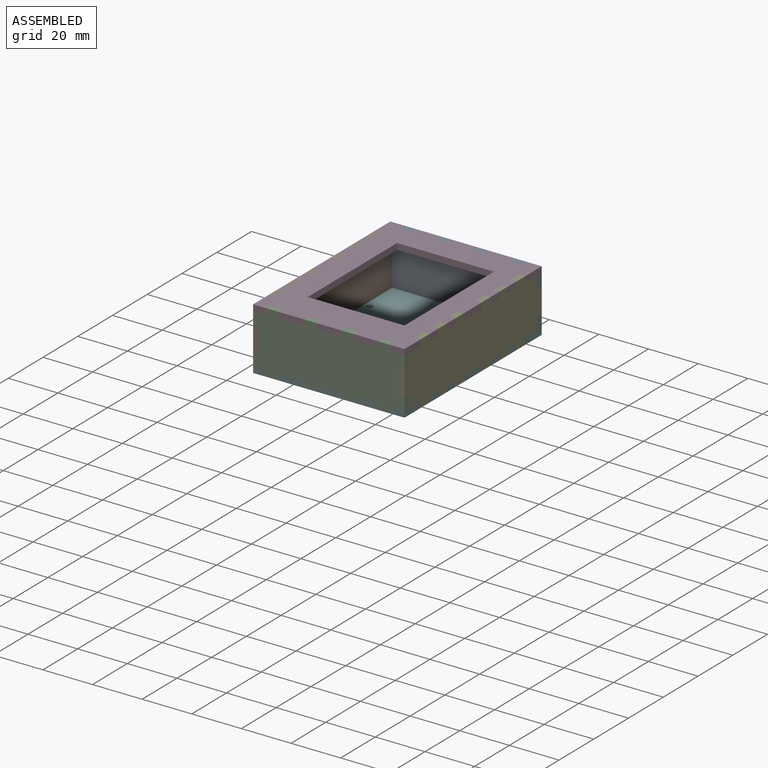
[diagram: assembled view]
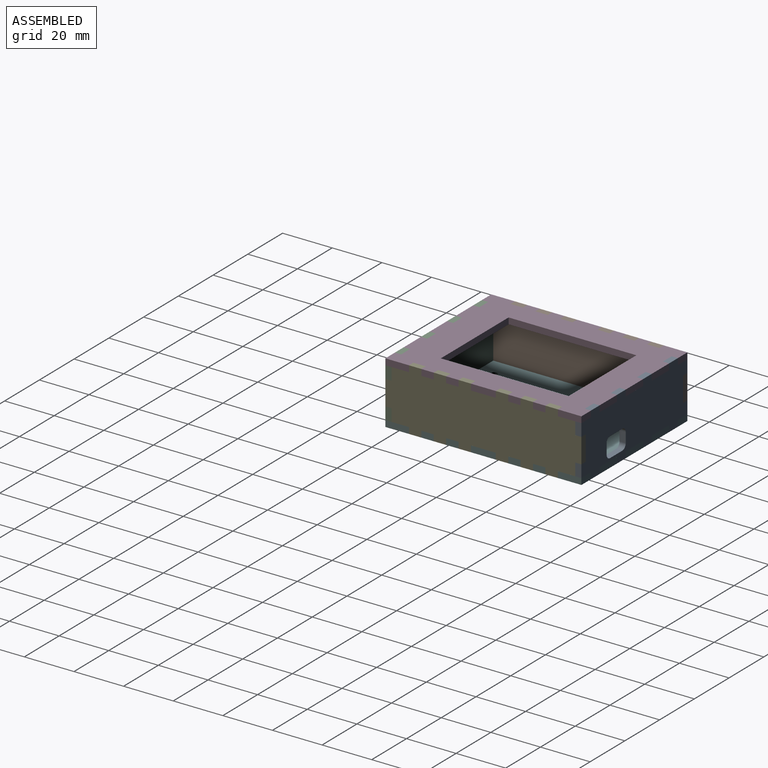
[diagram: assembled view, second angle]
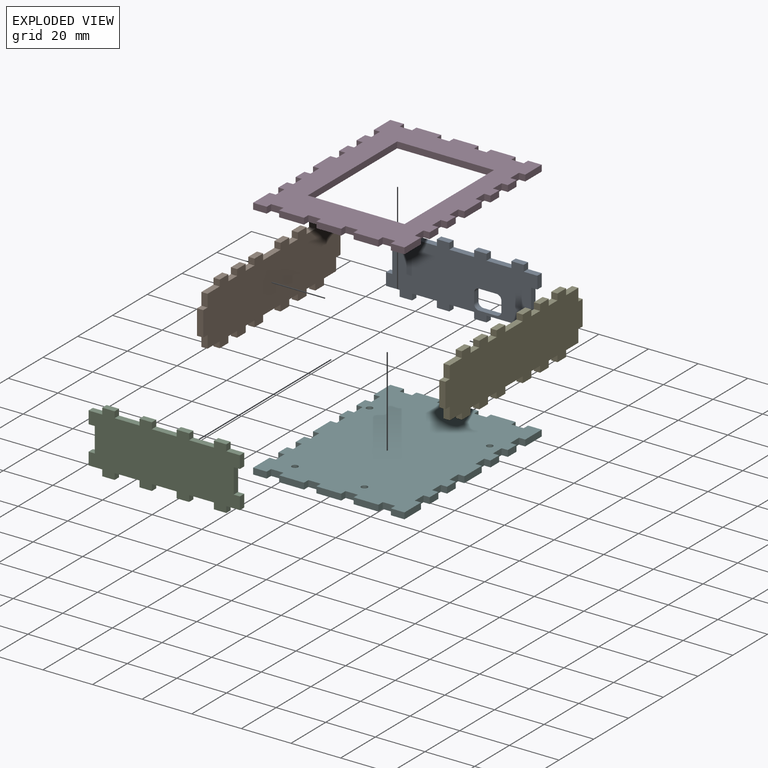
[diagram: exploded view]
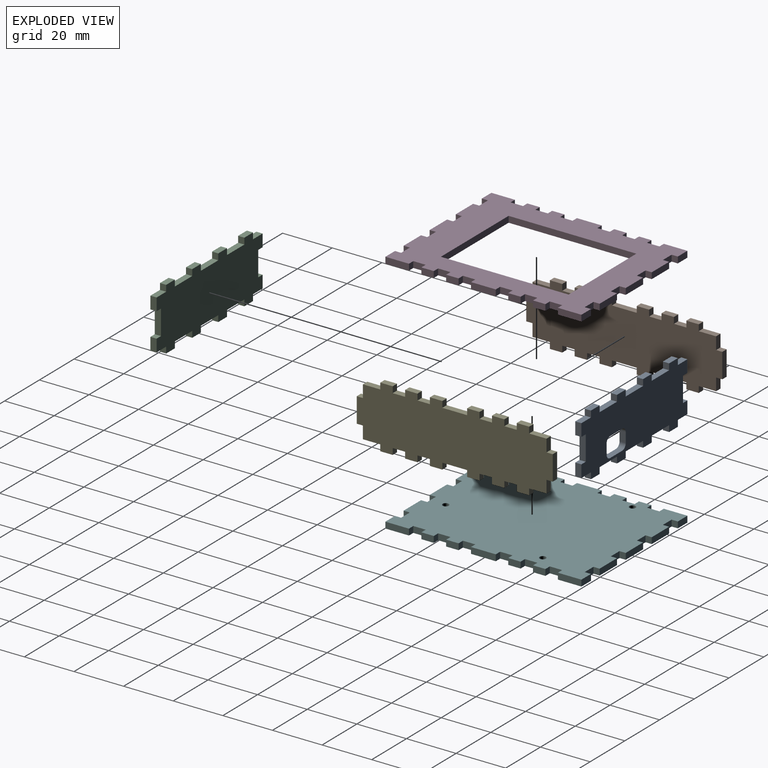
[diagram: exploded view, second angle]
ASSEMBLY  parts=6 mates=5
PART A: 54 faces, bbox 61x25x2.5 mm
  f0: plane 7x2.5mm, normal (0,1,0), area 17.5mm2, adj f48,f49,f50,f53
  f1: plane 4x2.5mm, normal (1,0,0), area 10mm2, adj f48,f49,f50,f51
  f2: plane 7x2.5mm, normal (0,-1,0), area 17.5mm2, adj f48,f49,f51,f52
  f3: plane 5.5x2.5mm, normal (0,-1,0), area 13.7mm2, adj f4,f46,f48,f49
  f4: plane 2.5x2.5mm, normal (-1,0,0), area 6.3mm2, adj f3,f5,f48,f49
  f5: plane 5x2.5mm, normal (0,-1,0), area 12.5mm2, adj f4,f6,f48,f49
  f6: plane 2.5x2.5mm, normal (1,0,0), area 6.3mm2, adj f5,f7,f48,f49
  f7: plane 10x2.5mm, normal (0,-1,0), area 25mm2, adj f6,f8,f48,f49
  f8: plane 2.5x2.5mm, normal (-1,0,0), area 6.3mm2, adj f7,f9,f48,f49
  f9: plane 5x2.5mm, normal (0,-1,0), area 12.5mm2, adj f8,f10,f48,f49
  f10: plane 2.5x2.5mm, normal (1,0,0), area 6.3mm2, adj f9,f11,f48,f49
  f11: plane 10x2.5mm, normal (0,-1,0), area 25mm2, adj f10,f12,f48,f49
  f12: plane 2.5x2.5mm, normal (-1,0,0), area 6.3mm2, adj f11,f13,f48,f49
  f13: plane 5x2.5mm, normal (0,-1,0), area 12.5mm2, adj f12,f14,f48,f49
  f14: plane 2.5x2.5mm, normal (1,0,0), area 6.3mm2, adj f13,f15,f48,f49
  f15: plane 10x2.5mm, normal (0,-1,0), area 25mm2, adj f14,f16,f48,f49
  f16: plane 2.5x2.5mm, normal (-1,0,0), area 6.3mm2, adj f15,f17,f48,f49
  f17: plane 5x2.5mm, normal (0,-1,0), area 12.5mm2, adj f16,f18,f48,f49
  f18: plane 2.5x2.5mm, normal (1,0,0), area 6.3mm2, adj f17,f19,f48,f49
  f19: plane 5.5x2.5mm, normal (0,-1,0), area 13.7mm2, adj f18,f20,f48,f49
  f20: plane 5x2.5mm, normal (1,0,0), area 12.5mm2, adj f19,f21,f48,f49
  f21: plane 2.5x2.5mm, normal (0,1,0), area 6.2mm2, adj f20,f22,f48,f49
  f22: plane 10x2.5mm, normal (1,0,0), area 25mm2, adj f21,f23,f48,f49
  f23: plane 2.5x2.5mm, normal (0,-1,0), area 6.2mm2, adj f22,f24,f48,f49
  f24: plane 5x2.5mm, normal (1,0,0), area 12.5mm2, adj f23,f25,f48,f49
  f25: plane 5.5x2.5mm, normal (0,1,0), area 13.7mm2, adj f24,f26,f48,f49
  f26: plane 2.5x2.5mm, normal (1,0,0), area 6.3mm2, adj f25,f27,f48,f49
  f27: plane 5x2.5mm, normal (0,1,0), area 12.5mm2, adj f26,f28,f48,f49
  f28: plane 2.5x2.5mm, normal (-1,0,0), area 6.3mm2, adj f27,f29,f48,f49
  f29: plane 10x2.5mm, normal (0,1,0), area 25mm2, adj f28,f30,f48,f49
  f30: plane 2.5x2.5mm, normal (1,0,0), area 6.3mm2, adj f29,f31,f48,f49
  f31: plane 5x2.5mm, normal (0,1,0), area 12.5mm2, adj f30,f32,f48,f49
  f32: plane 2.5x2.5mm, normal (-1,0,0), area 6.3mm2, adj f31,f33,f48,f49
  f33: plane 10x2.5mm, normal (0,1,0), area 25mm2, adj f32,f34,f48,f49
  f34: plane 2.5x2.5mm, normal (1,0,0), area 6.3mm2, adj f33,f35,f48,f49
  f35: plane 5x2.5mm, normal (0,1,0), area 12.5mm2, adj f34,f36,f48,f49
  f36: plane 2.5x2.5mm, normal (-1,0,0), area 6.3mm2, adj f35,f37,f48,f49
  f37: plane 10x2.5mm, normal (0,1,0), area 25mm2, adj f36,f38,f48,f49
  f38: plane 2.5x2.5mm, normal (1,0,0), area 6.3mm2, adj f37,f39,f48,f49
  f39: plane 5x2.5mm, normal (0,1,0), area 12.5mm2, adj f38,f40,f48,f49
  f40: plane 2.5x2.5mm, normal (-1,0,0), area 6.3mm2, adj f39,f41,f48,f49
  f41: plane 5.5x2.5mm, normal (0,1,0), area 13.7mm2, adj f40,f42,f48,f49
  f42: plane 5x2.5mm, normal (-1,0,0), area 12.5mm2, adj f41,f43,f48,f49
  f43: plane 2.5x2.5mm, normal (0,-1,0), area 6.2mm2, adj f42,f44,f48,f49
  f44: plane 10x2.5mm, normal (-1,0,0), area 25mm2, adj f43,f45,f48,f49
  f45: plane 2.5x2.5mm, normal (0,1,0), area 6.2mm2, adj f44,f46,f48,f49
  f46: plane 5x2.5mm, normal (-1,0,0), area 12.5mm2, adj f3,f45,f48,f49
  f47: plane 4x2.5mm, normal (-1,0,0), area 10mm2, adj f48,f49,f52,f53
  f48: plane 61x25mm, normal (0,0,1), area 1185.4mm2, adj f0,f1,f2,f3,f4,f5,f6,f7
  f49: plane 61x25mm, normal (0,0,-1), area 1185.4mm2, adj f0,f1,f2,f3,f4,f5,f6,f7
  f50: cylinder r=2mm len=2.5mm, axis (0,0,-1), area 7.9mm2, adj f0,f1,f48,f49
  f51: cylinder r=2mm len=2.5mm, axis (0,0,1), area 7.9mm2, adj f1,f2,f48,f49
  f52: cylinder r=2mm len=2.5mm, axis (0,0,-1), area 7.9mm2, adj f2,f47,f48,f49
  f53: cylinder r=2mm len=2.5mm, axis (0,0,1), area 7.9mm2, adj f0,f47,f48,f49
PART B: 62 faces, bbox 25x79x2.5 mm
  f0: plane 5x2.5mm, normal (0,-1,0), area 12.5mm2, adj f1,f59,f60,f61
  f1: plane 2.5x2.5mm, normal (-1,0,0), area 6.3mm2, adj f0,f2,f60,f61
  f2: plane 10x2.5mm, normal (0,-1,0), area 25mm2, adj f1,f3,f60,f61
  f3: plane 2.5x2.5mm, normal (1,0,0), area 6.3mm2, adj f2,f4,f60,f61
  f4: plane 5x2.5mm, normal (0,-1,0), area 12.5mm2, adj f3,f5,f60,f61
  f5: plane 7x2.5mm, normal (1,0,0), area 17.5mm2, adj f4,f6,f60,f61
  f6: plane 2.5x2.5mm, normal (0,-1,0), area 6.3mm2, adj f5,f7,f60,f61
  f7: plane 5x2.5mm, normal (1,0,0), area 12.5mm2, adj f6,f8,f60,f61
  f8: plane 2.5x2.5mm, normal (0,1,0), area 6.3mm2, adj f7,f9,f60,f61
  f9: plane 5x2.5mm, normal (1,0,0), area 12.5mm2, adj f8,f10,f60,f61
  f10: plane 2.5x2.5mm, normal (0,-1,0), area 6.3mm2, adj f9,f11,f60,f61
  f11: plane 5x2.5mm, normal (1,0,0), area 12.5mm2, adj f10,f12,f60,f61
  f12: plane 2.5x2.5mm, normal (0,1,0), area 6.3mm2, adj f11,f13,f60,f61
  f13: plane 5x2.5mm, normal (1,0,0), area 12.5mm2, adj f12,f14,f60,f61
  f14: plane 2.5x2.5mm, normal (0,-1,0), area 6.3mm2, adj f13,f15,f60,f61
  f15: plane 5x2.5mm, normal (1,0,0), area 12.5mm2, adj f14,f16,f60,f61
  f16: plane 2.5x2.5mm, normal (0,1,0), area 6.3mm2, adj f15,f17,f60,f61
  f17: plane 10x2.5mm, normal (1,0,0), area 25mm2, adj f16,f18,f60,f61
  f18: plane 2.5x2.5mm, normal (0,-1,0), area 6.3mm2, adj f17,f19,f60,f61
  f19: plane 5x2.5mm, normal (1,0,0), area 12.5mm2, adj f18,f20,f60,f61
  f20: plane 2.5x2.5mm, normal (0,1,0), area 6.3mm2, adj f19,f21,f60,f61
  f21: plane 5x2.5mm, normal (1,0,0), area 12.5mm2, adj f20,f22,f60,f61
  f22: plane 2.5x2.5mm, normal (0,-1,0), area 6.3mm2, adj f21,f23,f60,f61
  f23: plane 5x2.5mm, normal (1,0,0), area 12.5mm2, adj f22,f24,f60,f61
  f24: plane 2.5x2.5mm, normal (0,1,0), area 6.3mm2, adj f23,f25,f60,f61
  f25: plane 5x2.5mm, normal (1,0,0), area 12.5mm2, adj f24,f26,f60,f61
  f26: plane 2.5x2.5mm, normal (0,-1,0), area 6.3mm2, adj f25,f27,f60,f61
  f27: plane 5x2.5mm, normal (1,0,0), area 12.5mm2, adj f26,f28,f60,f61
  f28: plane 2.5x2.5mm, normal (0,1,0), area 6.3mm2, adj f27,f29,f60,f61
  f29: plane 7x2.5mm, normal (1,0,0), area 17.5mm2, adj f28,f30,f60,f61
  f30: plane 5x2.5mm, normal (0,1,0), area 12.5mm2, adj f29,f31,f60,f61
  f31: plane 2.5x2.5mm, normal (1,0,0), area 6.3mm2, adj f30,f32,f60,f61
  f32: plane 10x2.5mm, normal (0,1,0), area 25mm2, adj f31,f33,f60,f61
  f33: plane 2.5x2.5mm, normal (-1,0,0), area 6.3mm2, adj f32,f34,f60,f61
  f34: plane 5x2.5mm, normal (0,1,0), area 12.5mm2, adj f33,f35,f60,f61
  f35: plane 7x2.5mm, normal (-1,0,0), area 17.5mm2, adj f34,f36,f60,f61
  f36: plane 2.5x2.5mm, normal (0,1,0), area 6.3mm2, adj f35,f37,f60,f61
  f37: plane 5x2.5mm, normal (-1,0,0), area 12.5mm2, adj f36,f38,f60,f61
  f38: plane 2.5x2.5mm, normal (0,-1,0), area 6.3mm2, adj f37,f39,f60,f61
  f39: plane 5x2.5mm, normal (-1,0,0), area 12.5mm2, adj f38,f40,f60,f61
  f40: plane 2.5x2.5mm, normal (0,1,0), area 6.3mm2, adj f39,f41,f60,f61
  f41: plane 5x2.5mm, normal (-1,0,0), area 12.5mm2, adj f40,f42,f60,f61
  f42: plane 2.5x2.5mm, normal (0,-1,0), area 6.3mm2, adj f41,f43,f60,f61
  f43: plane 5x2.5mm, normal (-1,0,0), area 12.5mm2, adj f42,f44,f60,f61
  f44: plane 2.5x2.5mm, normal (0,1,0), area 6.3mm2, adj f43,f45,f60,f61
  f45: plane 5x2.5mm, normal (-1,0,0), area 12.5mm2, adj f44,f46,f60,f61
  f46: plane 2.5x2.5mm, normal (0,-1,0), area 6.3mm2, adj f45,f47,f60,f61
  f47: plane 10x2.5mm, normal (-1,0,0), area 25mm2, adj f46,f48,f60,f61
  f48: plane 2.5x2.5mm, normal (0,1,0), area 6.3mm2, adj f47,f49,f60,f61
  f49: plane 5x2.5mm, normal (-1,0,0), area 12.5mm2, adj f48,f50,f60,f61
  f50: plane 2.5x2.5mm, normal (0,-1,0), area 6.3mm2, adj f49,f51,f60,f61
  f51: plane 5x2.5mm, normal (-1,0,0), area 12.5mm2, adj f50,f52,f60,f61
  f52: plane 2.5x2.5mm, normal (0,1,0), area 6.3mm2, adj f51,f53,f60,f61
  f53: plane 5x2.5mm, normal (-1,0,0), area 12.5mm2, adj f52,f54,f60,f61
  f54: plane 2.5x2.5mm, normal (0,-1,0), area 6.3mm2, adj f53,f55,f60,f61
  f55: plane 5x2.5mm, normal (-1,0,0), area 12.5mm2, adj f54,f56,f60,f61
  f56: plane 2.5x2.5mm, normal (0,1,0), area 6.3mm2, adj f55,f57,f60,f61
  f57: plane 5x2.5mm, normal (-1,0,0), area 12.5mm2, adj f56,f58,f60,f61
  f58: plane 2.5x2.5mm, normal (0,-1,0), area 6.3mm2, adj f57,f59,f60,f61
  f59: plane 7x2.5mm, normal (-1,0,0), area 17.5mm2, adj f0,f58,f60,f61
  f60: plane 79x25mm, normal (0,0,1), area 1680mm2, adj f0,f1,f2,f3,f4,f5,f6,f7
  f61: plane 79x25mm, normal (0,0,-1), area 1680mm2, adj f0,f1,f2,f3,f4,f5,f6,f7
PART C: 46 faces, bbox 61x25x2.5 mm
  f0: plane 5.5x2.5mm, normal (0,-1,0), area 13.7mm2, adj f1,f43,f44,f45
  f1: plane 2.5x2.5mm, normal (-1,0,0), area 6.3mm2, adj f0,f2,f44,f45
  f2: plane 5x2.5mm, normal (0,-1,0), area 12.5mm2, adj f1,f3,f44,f45
  f3: plane 2.5x2.5mm, normal (1,0,0), area 6.3mm2, adj f2,f4,f44,f45
  f4: plane 10x2.5mm, normal (0,-1,0), area 25mm2, adj f3,f5,f44,f45
  f5: plane 2.5x2.5mm, normal (-1,0,0), area 6.3mm2, adj f4,f6,f44,f45
  f6: plane 5x2.5mm, normal (0,-1,0), area 12.5mm2, adj f5,f7,f44,f45
  f7: plane 2.5x2.5mm, normal (1,0,0), area 6.3mm2, adj f6,f8,f44,f45
  f8: plane 10x2.5mm, normal (0,-1,0), area 25mm2, adj f7,f9,f44,f45
  f9: plane 2.5x2.5mm, normal (-1,0,0), area 6.3mm2, adj f8,f10,f44,f45
  f10: plane 5x2.5mm, normal (0,-1,0), area 12.5mm2, adj f9,f11,f44,f45
  f11: plane 2.5x2.5mm, normal (1,0,0), area 6.3mm2, adj f10,f12,f44,f45
  f12: plane 10x2.5mm, normal (0,-1,0), area 25mm2, adj f11,f13,f44,f45
  f13: plane 2.5x2.5mm, normal (-1,0,0), area 6.3mm2, adj f12,f14,f44,f45
  f14: plane 5x2.5mm, normal (0,-1,0), area 12.5mm2, adj f13,f15,f44,f45
  f15: plane 2.5x2.5mm, normal (1,0,0), area 6.3mm2, adj f14,f16,f44,f45
  f16: plane 5.5x2.5mm, normal (0,-1,0), area 13.7mm2, adj f15,f17,f44,f45
  f17: plane 5x2.5mm, normal (1,0,0), area 12.5mm2, adj f16,f18,f44,f45
  f18: plane 2.5x2.5mm, normal (0,1,0), area 6.2mm2, adj f17,f19,f44,f45
  f19: plane 10x2.5mm, normal (1,0,0), area 25mm2, adj f18,f20,f44,f45
  f20: plane 2.5x2.5mm, normal (0,-1,0), area 6.2mm2, adj f19,f21,f44,f45
  f21: plane 5x2.5mm, normal (1,0,0), area 12.5mm2, adj f20,f22,f44,f45
  f22: plane 5.5x2.5mm, normal (0,1,0), area 13.7mm2, adj f21,f23,f44,f45
  f23: plane 2.5x2.5mm, normal (1,0,0), area 6.3mm2, adj f22,f24,f44,f45
  f24: plane 5x2.5mm, normal (0,1,0), area 12.5mm2, adj f23,f25,f44,f45
  f25: plane 2.5x2.5mm, normal (-1,0,0), area 6.3mm2, adj f24,f26,f44,f45
  f26: plane 10x2.5mm, normal (0,1,0), area 25mm2, adj f25,f27,f44,f45
  f27: plane 2.5x2.5mm, normal (1,0,0), area 6.3mm2, adj f26,f28,f44,f45
  f28: plane 5x2.5mm, normal (0,1,0), area 12.5mm2, adj f27,f29,f44,f45
  f29: plane 2.5x2.5mm, normal (-1,0,0), area 6.3mm2, adj f28,f30,f44,f45
  f30: plane 10x2.5mm, normal (0,1,0), area 25mm2, adj f29,f31,f44,f45
  f31: plane 2.5x2.5mm, normal (1,0,0), area 6.3mm2, adj f30,f32,f44,f45
  f32: plane 5x2.5mm, normal (0,1,0), area 12.5mm2, adj f31,f33,f44,f45
  f33: plane 2.5x2.5mm, normal (-1,0,0), area 6.3mm2, adj f32,f34,f44,f45
  f34: plane 10x2.5mm, normal (0,1,0), area 25mm2, adj f33,f35,f44,f45
  f35: plane 2.5x2.5mm, normal (1,0,0), area 6.3mm2, adj f34,f36,f44,f45
  f36: plane 5x2.5mm, normal (0,1,0), area 12.5mm2, adj f35,f37,f44,f45
  f37: plane 2.5x2.5mm, normal (-1,0,0), area 6.3mm2, adj f36,f38,f44,f45
  f38: plane 5.5x2.5mm, normal (0,1,0), area 13.7mm2, adj f37,f39,f44,f45
  f39: plane 5x2.5mm, normal (-1,0,0), area 12.5mm2, adj f38,f40,f44,f45
  f40: plane 2.5x2.5mm, normal (0,-1,0), area 6.2mm2, adj f39,f41,f44,f45
  f41: plane 10x2.5mm, normal (-1,0,0), area 25mm2, adj f40,f42,f44,f45
  f42: plane 2.5x2.5mm, normal (0,1,0), area 6.2mm2, adj f41,f43,f44,f45
  f43: plane 5x2.5mm, normal (-1,0,0), area 12.5mm2, adj f0,f42,f44,f45
  f44: plane 61x25mm, normal (0,0,1), area 1270mm2, adj f0,f1,f2,f3,f4,f5,f6,f7
  f45: plane 61x25mm, normal (0,0,-1), area 1270mm2, adj f0,f1,f2,f3,f4,f5,f6,f7
PART D: 90 faces, bbox 61x79x2.5 mm
  f0: plane 39x2.5mm, normal (0,1,0), area 97.5mm2, adj f1,f87,f88,f89
  f1: plane 51.5x2.5mm, normal (1,0,0), area 128.8mm2, adj f0,f2,f88,f89
  f2: plane 39x2.5mm, normal (0,-1,0), area 97.5mm2, adj f1,f87,f88,f89
  f3: plane 5x2.5mm, normal (0,-1,0), area 12.5mm2, adj f4,f86,f88,f89
  f4: plane 2.5x2.5mm, normal (-1,0,0), area 6.3mm2, adj f3,f5,f88,f89
  f5: plane 5.5x2.5mm, normal (0,-1,0), area 13.7mm2, adj f4,f6,f88,f89
  f6: plane 9.5x2.5mm, normal (1,0,0), area 23.8mm2, adj f5,f7,f88,f89
  f7: plane 2.5x2.5mm, normal (0,1,0), area 6.2mm2, adj f6,f8,f88,f89
  f8: plane 5x2.5mm, normal (1,0,0), area 12.5mm2, adj f7,f9,f88,f89
  f9: plane 2.5x2.5mm, normal (0,-1,0), area 6.2mm2, adj f8,f10,f88,f89
  f10: plane 5x2.5mm, normal (1,0,0), area 12.5mm2, adj f9,f11,f88,f89
  f11: plane 2.5x2.5mm, normal (0,1,0), area 6.2mm2, adj f10,f12,f88,f89
  f12: plane 5x2.5mm, normal (1,0,0), area 12.5mm2, adj f11,f13,f88,f89
  f13: plane 2.5x2.5mm, normal (0,-1,0), area 6.2mm2, adj f12,f14,f88,f89
  f14: plane 5x2.5mm, normal (1,0,0), area 12.5mm2, adj f13,f15,f88,f89
  f15: plane 2.5x2.5mm, normal (0,1,0), area 6.2mm2, adj f14,f16,f88,f89
  f16: plane 5x2.5mm, normal (1,0,0), area 12.5mm2, adj f15,f17,f88,f89
  f17: plane 2.5x2.5mm, normal (0,-1,0), area 6.2mm2, adj f16,f18,f88,f89
  f18: plane 10x2.5mm, normal (1,0,0), area 25mm2, adj f17,f19,f88,f89
  f19: plane 2.5x2.5mm, normal (0,1,0), area 6.2mm2, adj f18,f20,f88,f89
  f20: plane 5x2.5mm, normal (1,0,0), area 12.5mm2, adj f19,f21,f88,f89
  f21: plane 2.5x2.5mm, normal (0,-1,0), area 6.2mm2, adj f20,f22,f88,f89
  f22: plane 5x2.5mm, normal (1,0,0), area 12.5mm2, adj f21,f23,f88,f89
  f23: plane 2.5x2.5mm, normal (0,1,0), area 6.2mm2, adj f22,f24,f88,f89
  f24: plane 5x2.5mm, normal (1,0,0), area 12.5mm2, adj f23,f25,f88,f89
  f25: plane 2.5x2.5mm, normal (0,-1,0), area 6.2mm2, adj f24,f26,f88,f89
  f26: plane 5x2.5mm, normal (1,0,0), area 12.5mm2, adj f25,f27,f88,f89
  f27: plane 2.5x2.5mm, normal (0,1,0), area 6.2mm2, adj f26,f28,f88,f89
  f28: plane 5x2.5mm, normal (1,0,0), area 12.5mm2, adj f27,f29,f88,f89
  f29: plane 2.5x2.5mm, normal (0,-1,0), area 6.2mm2, adj f28,f30,f88,f89
  f30: plane 9.5x2.5mm, normal (1,0,0), area 23.8mm2, adj f29,f31,f88,f89
  f31: plane 5.5x2.5mm, normal (0,1,0), area 13.7mm2, adj f30,f32,f88,f89
  f32: plane 2.5x2.5mm, normal (-1,0,0), area 6.3mm2, adj f31,f33,f88,f89
  f33: plane 5x2.5mm, normal (0,1,0), area 12.5mm2, adj f32,f34,f88,f89
  f34: plane 2.5x2.5mm, normal (1,0,0), area 6.3mm2, adj f33,f35,f88,f89
  f35: plane 10x2.5mm, normal (0,1,0), area 25mm2, adj f34,f36,f88,f89
  f36: plane 2.5x2.5mm, normal (-1,0,0), area 6.3mm2, adj f35,f37,f88,f89
  f37: plane 5x2.5mm, normal (0,1,0), area 12.5mm2, adj f36,f38,f88,f89
  f38: plane 2.5x2.5mm, normal (1,0,0), area 6.3mm2, adj f37,f39,f88,f89
  f39: plane 10x2.5mm, normal (0,1,0), area 25mm2, adj f38,f40,f88,f89
  f40: plane 2.5x2.5mm, normal (-1,0,0), area 6.3mm2, adj f39,f41,f88,f89
  f41: plane 5x2.5mm, normal (0,1,0), area 12.5mm2, adj f40,f42,f88,f89
  f42: plane 2.5x2.5mm, normal (1,0,0), area 6.3mm2, adj f41,f43,f88,f89
  f43: plane 10x2.5mm, normal (0,1,0), area 25mm2, adj f42,f44,f88,f89
  f44: plane 2.5x2.5mm, normal (-1,0,0), area 6.3mm2, adj f43,f45,f88,f89
  f45: plane 5x2.5mm, normal (0,1,0), area 12.5mm2, adj f44,f46,f88,f89
  f46: plane 2.5x2.5mm, normal (1,0,0), area 6.3mm2, adj f45,f47,f88,f89
  f47: plane 5.5x2.5mm, normal (0,1,0), area 13.7mm2, adj f46,f48,f88,f89
  f48: plane 9.5x2.5mm, normal (-1,0,0), area 23.8mm2, adj f47,f49,f88,f89
  f49: plane 2.5x2.5mm, normal (0,-1,0), area 6.2mm2, adj f48,f50,f88,f89
  f50: plane 5x2.5mm, normal (-1,0,0), area 12.5mm2, adj f49,f51,f88,f89
  f51: plane 2.5x2.5mm, normal (0,1,0), area 6.2mm2, adj f50,f52,f88,f89
  f52: plane 5x2.5mm, normal (-1,0,0), area 12.5mm2, adj f51,f53,f88,f89
  f53: plane 2.5x2.5mm, normal (0,-1,0), area 6.2mm2, adj f52,f54,f88,f89
  f54: plane 5x2.5mm, normal (-1,0,0), area 12.5mm2, adj f53,f55,f88,f89
  f55: plane 2.5x2.5mm, normal (0,1,0), area 6.2mm2, adj f54,f56,f88,f89
  f56: plane 5x2.5mm, normal (-1,0,0), area 12.5mm2, adj f55,f57,f88,f89
  f57: plane 2.5x2.5mm, normal (0,-1,0), area 6.2mm2, adj f56,f58,f88,f89
  f58: plane 5x2.5mm, normal (-1,0,0), area 12.5mm2, adj f57,f59,f88,f89
  f59: plane 2.5x2.5mm, normal (0,1,0), area 6.2mm2, adj f58,f60,f88,f89
  f60: plane 10x2.5mm, normal (-1,0,0), area 25mm2, adj f59,f61,f88,f89
  f61: plane 2.5x2.5mm, normal (0,-1,0), area 6.2mm2, adj f60,f62,f88,f89
  f62: plane 5x2.5mm, normal (-1,0,0), area 12.5mm2, adj f61,f63,f88,f89
  f63: plane 2.5x2.5mm, normal (0,1,0), area 6.2mm2, adj f62,f64,f88,f89
  f64: plane 5x2.5mm, normal (-1,0,0), area 12.5mm2, adj f63,f65,f88,f89
  f65: plane 2.5x2.5mm, normal (0,-1,0), area 6.2mm2, adj f64,f66,f88,f89
  f66: plane 5x2.5mm, normal (-1,0,0), area 12.5mm2, adj f65,f67,f88,f89
  f67: plane 2.5x2.5mm, normal (0,1,0), area 6.2mm2, adj f66,f68,f88,f89
  f68: plane 5x2.5mm, normal (-1,0,0), area 12.5mm2, adj f67,f69,f88,f89
  f69: plane 2.5x2.5mm, normal (0,-1,0), area 6.2mm2, adj f68,f70,f88,f89
  f70: plane 5x2.5mm, normal (-1,0,0), area 12.5mm2, adj f69,f71,f88,f89
  f71: plane 2.5x2.5mm, normal (0,1,0), area 6.2mm2, adj f70,f72,f88,f89
  f72: plane 9.5x2.5mm, normal (-1,0,0), area 23.8mm2, adj f71,f73,f88,f89
  f73: plane 5.5x2.5mm, normal (0,-1,0), area 13.7mm2, adj f72,f74,f88,f89
  f74: plane 2.5x2.5mm, normal (1,0,0), area 6.3mm2, adj f73,f75,f88,f89
  f75: plane 5x2.5mm, normal (0,-1,0), area 12.5mm2, adj f74,f76,f88,f89
  f76: plane 2.5x2.5mm, normal (-1,0,0), area 6.3mm2, adj f75,f77,f88,f89
  f77: plane 10x2.5mm, normal (0,-1,0), area 25mm2, adj f76,f78,f88,f89
  f78: plane 2.5x2.5mm, normal (1,0,0), area 6.3mm2, adj f77,f79,f88,f89
  f79: plane 5x2.5mm, normal (0,-1,0), area 12.5mm2, adj f78,f80,f88,f89
  f80: plane 2.5x2.5mm, normal (-1,0,0), area 6.3mm2, adj f79,f81,f88,f89
  f81: plane 10x2.5mm, normal (0,-1,0), area 25mm2, adj f80,f82,f88,f89
  f82: plane 2.5x2.5mm, normal (1,0,0), area 6.3mm2, adj f81,f83,f88,f89
  f83: plane 5x2.5mm, normal (0,-1,0), area 12.5mm2, adj f82,f84,f88,f89
  f84: plane 2.5x2.5mm, normal (-1,0,0), area 6.3mm2, adj f83,f85,f88,f89
  f85: plane 10x2.5mm, normal (0,-1,0), area 25mm2, adj f84,f86,f88,f89
  f86: plane 2.5x2.5mm, normal (1,0,0), area 6.3mm2, adj f3,f85,f88,f89
  f87: plane 51.5x2.5mm, normal (-1,0,0), area 128.8mm2, adj f0,f2,f88,f89
  f88: plane 79x61mm, normal (0,0,1), area 2560.5mm2, adj f0,f1,f2,f3,f4,f5,f6,f7
  f89: plane 79x61mm, normal (0,0,-1), area 2560.5mm2, adj f0,f1,f2,f3,f4,f5,f6,f7
PART E: same geometry as B
PART F: 90 faces, bbox 61x79x2.5 mm
  f0: plane 5x2.5mm, normal (0,-1,0), area 12.5mm2, adj f1,f86,f88,f89
  f1: plane 2.5x2.5mm, normal (-1,0,0), area 6.3mm2, adj f0,f2,f88,f89
  f2: plane 5.5x2.5mm, normal (0,-1,0), area 13.7mm2, adj f1,f3,f88,f89
  f3: plane 9.5x2.5mm, normal (1,0,0), area 23.8mm2, adj f2,f4,f88,f89
  f4: plane 2.5x2.5mm, normal (0,1,0), area 6.2mm2, adj f3,f5,f88,f89
  f5: plane 5x2.5mm, normal (1,0,0), area 12.5mm2, adj f4,f6,f88,f89
  f6: plane 2.5x2.5mm, normal (0,-1,0), area 6.2mm2, adj f5,f7,f88,f89
  f7: plane 5x2.5mm, normal (1,0,0), area 12.5mm2, adj f6,f8,f88,f89
  f8: plane 2.5x2.5mm, normal (0,1,0), area 6.2mm2, adj f7,f9,f88,f89
  f9: plane 5x2.5mm, normal (1,0,0), area 12.5mm2, adj f8,f10,f88,f89
  f10: plane 2.5x2.5mm, normal (0,-1,0), area 6.2mm2, adj f9,f11,f88,f89
  f11: plane 5x2.5mm, normal (1,0,0), area 12.5mm2, adj f10,f12,f88,f89
  f12: plane 2.5x2.5mm, normal (0,1,0), area 6.2mm2, adj f11,f13,f88,f89
  f13: plane 5x2.5mm, normal (1,0,0), area 12.5mm2, adj f12,f14,f88,f89
  f14: plane 2.5x2.5mm, normal (0,-1,0), area 6.2mm2, adj f13,f15,f88,f89
  f15: plane 10x2.5mm, normal (1,0,0), area 25mm2, adj f14,f16,f88,f89
  f16: plane 2.5x2.5mm, normal (0,1,0), area 6.2mm2, adj f15,f17,f88,f89
  f17: plane 5x2.5mm, normal (1,0,0), area 12.5mm2, adj f16,f18,f88,f89
  f18: plane 2.5x2.5mm, normal (0,-1,0), area 6.2mm2, adj f17,f19,f88,f89
  f19: plane 5x2.5mm, normal (1,0,0), area 12.5mm2, adj f18,f20,f88,f89
  f20: plane 2.5x2.5mm, normal (0,1,0), area 6.2mm2, adj f19,f21,f88,f89
  f21: plane 5x2.5mm, normal (1,0,0), area 12.5mm2, adj f20,f22,f88,f89
  f22: plane 2.5x2.5mm, normal (0,-1,0), area 6.2mm2, adj f21,f23,f88,f89
  f23: plane 5x2.5mm, normal (1,0,0), area 12.5mm2, adj f22,f24,f88,f89
  f24: plane 2.5x2.5mm, normal (0,1,0), area 6.2mm2, adj f23,f25,f88,f89
  f25: plane 5x2.5mm, normal (1,0,0), area 12.5mm2, adj f24,f26,f88,f89
  f26: plane 2.5x2.5mm, normal (0,-1,0), area 6.2mm2, adj f25,f27,f88,f89
  f27: plane 9.5x2.5mm, normal (1,0,0), area 23.8mm2, adj f26,f28,f88,f89
  f28: plane 5.5x2.5mm, normal (0,1,0), area 13.7mm2, adj f27,f29,f88,f89
  f29: plane 2.5x2.5mm, normal (-1,0,0), area 6.3mm2, adj f28,f30,f88,f89
  f30: plane 5x2.5mm, normal (0,1,0), area 12.5mm2, adj f29,f31,f88,f89
  f31: plane 2.5x2.5mm, normal (1,0,0), area 6.3mm2, adj f30,f32,f88,f89
  f32: plane 10x2.5mm, normal (0,1,0), area 25mm2, adj f31,f33,f88,f89
  f33: plane 2.5x2.5mm, normal (-1,0,0), area 6.3mm2, adj f32,f34,f88,f89
  f34: plane 5x2.5mm, normal (0,1,0), area 12.5mm2, adj f33,f35,f88,f89
  f35: plane 2.5x2.5mm, normal (1,0,0), area 6.3mm2, adj f34,f36,f88,f89
  f36: plane 10x2.5mm, normal (0,1,0), area 25mm2, adj f35,f37,f88,f89
  f37: plane 2.5x2.5mm, normal (-1,0,0), area 6.3mm2, adj f36,f38,f88,f89
  f38: plane 5x2.5mm, normal (0,1,0), area 12.5mm2, adj f37,f39,f88,f89
  f39: plane 2.5x2.5mm, normal (1,0,0), area 6.3mm2, adj f38,f40,f88,f89
  f40: plane 10x2.5mm, normal (0,1,0), area 25mm2, adj f39,f41,f88,f89
  f41: plane 2.5x2.5mm, normal (-1,0,0), area 6.3mm2, adj f40,f42,f88,f89
  f42: plane 5x2.5mm, normal (0,1,0), area 12.5mm2, adj f41,f43,f88,f89
  f43: plane 2.5x2.5mm, normal (1,0,0), area 6.3mm2, adj f42,f44,f88,f89
  f44: plane 5.5x2.5mm, normal (0,1,0), area 13.7mm2, adj f43,f45,f88,f89
  f45: plane 9.5x2.5mm, normal (-1,0,0), area 23.8mm2, adj f44,f46,f88,f89
  f46: plane 2.5x2.5mm, normal (0,-1,0), area 6.2mm2, adj f45,f47,f88,f89
  f47: plane 5x2.5mm, normal (-1,0,0), area 12.5mm2, adj f46,f48,f88,f89
  f48: plane 2.5x2.5mm, normal (0,1,0), area 6.2mm2, adj f47,f49,f88,f89
  f49: plane 5x2.5mm, normal (-1,0,0), area 12.5mm2, adj f48,f50,f88,f89
  f50: plane 2.5x2.5mm, normal (0,-1,0), area 6.2mm2, adj f49,f51,f88,f89
  f51: plane 5x2.5mm, normal (-1,0,0), area 12.5mm2, adj f50,f52,f88,f89
  f52: plane 2.5x2.5mm, normal (0,1,0), area 6.2mm2, adj f51,f53,f88,f89
  f53: plane 5x2.5mm, normal (-1,0,0), area 12.5mm2, adj f52,f54,f88,f89
  f54: plane 2.5x2.5mm, normal (0,-1,0), area 6.2mm2, adj f53,f55,f88,f89
  f55: plane 5x2.5mm, normal (-1,0,0), area 12.5mm2, adj f54,f56,f88,f89
  f56: plane 2.5x2.5mm, normal (0,1,0), area 6.2mm2, adj f55,f57,f88,f89
  f57: plane 10x2.5mm, normal (-1,0,0), area 25mm2, adj f56,f58,f88,f89
  f58: plane 2.5x2.5mm, normal (0,-1,0), area 6.2mm2, adj f57,f59,f88,f89
  f59: plane 5x2.5mm, normal (-1,0,0), area 12.5mm2, adj f58,f60,f88,f89
  f60: plane 2.5x2.5mm, normal (0,1,0), area 6.2mm2, adj f59,f61,f88,f89
  f61: plane 5x2.5mm, normal (-1,0,0), area 12.5mm2, adj f60,f62,f88,f89
  f62: plane 2.5x2.5mm, normal (0,-1,0), area 6.2mm2, adj f61,f63,f88,f89
  f63: plane 5x2.5mm, normal (-1,0,0), area 12.5mm2, adj f62,f64,f88,f89
  f64: plane 2.5x2.5mm, normal (0,1,0), area 6.2mm2, adj f63,f65,f88,f89
  f65: plane 5x2.5mm, normal (-1,0,0), area 12.5mm2, adj f64,f66,f88,f89
  f66: plane 2.5x2.5mm, normal (0,-1,0), area 6.2mm2, adj f65,f67,f88,f89
  f67: plane 5x2.5mm, normal (-1,0,0), area 12.5mm2, adj f66,f68,f88,f89
  f68: plane 2.5x2.5mm, normal (0,1,0), area 6.2mm2, adj f67,f69,f88,f89
  f69: plane 9.5x2.5mm, normal (-1,0,0), area 23.8mm2, adj f68,f70,f88,f89
  f70: plane 5.5x2.5mm, normal (0,-1,0), area 13.7mm2, adj f69,f71,f88,f89
  f71: plane 2.5x2.5mm, normal (1,0,0), area 6.3mm2, adj f70,f72,f88,f89
  f72: plane 5x2.5mm, normal (0,-1,0), area 12.5mm2, adj f71,f73,f88,f89
  f73: plane 2.5x2.5mm, normal (-1,0,0), area 6.3mm2, adj f72,f74,f88,f89
  f74: plane 10x2.5mm, normal (0,-1,0), area 25mm2, adj f73,f75,f88,f89
  f75: plane 2.5x2.5mm, normal (1,0,0), area 6.3mm2, adj f74,f76,f88,f89
  f76: plane 5x2.5mm, normal (0,-1,0), area 12.5mm2, adj f75,f77,f88,f89
  f77: plane 2.5x2.5mm, normal (-1,0,0), area 6.3mm2, adj f76,f78,f88,f89
  f78: plane 10x2.5mm, normal (0,-1,0), area 25mm2, adj f77,f79,f88,f89
  f79: plane 2.5x2.5mm, normal (1,0,0), area 6.3mm2, adj f78,f80,f88,f89
  f80: plane 5x2.5mm, normal (0,-1,0), area 12.5mm2, adj f79,f81,f88,f89
  f81: plane 2.5x2.5mm, normal (-1,0,0), area 6.3mm2, adj f80,f82,f88,f89
  f82: plane 10x2.5mm, normal (0,-1,0), area 25mm2, adj f81,f86,f88,f89
  f83: cylinder r=1.25mm len=2.5mm, axis (0,0,-1), area 19.6mm2, adj f88,f89
  f84: cylinder r=1.25mm len=2.5mm, axis (0,0,-1), area 19.6mm2, adj f88,f89
  f85: cylinder r=1.25mm len=2.5mm, axis (0,0,-1), area 19.6mm2, adj f88,f89
  f86: plane 2.5x2.5mm, normal (1,0,0), area 6.3mm2, adj f0,f82,f88,f89
  f87: cylinder r=1.25mm len=2.5mm, axis (0,0,-1), area 19.6mm2, adj f88,f89
  f88: plane 79x61mm, normal (0,0,1), area 4549.4mm2, adj f0,f1,f2,f3,f4,f5,f6,f7
  f89: plane 79x61mm, normal (0,0,-1), area 4549.4mm2, adj f0,f1,f2,f3,f4,f5,f6,f7
PLACE A rot(axis=(0,-0.71,-0.71),180deg) t=(1.75,38.57,12.44)mm
PLACE B rot(axis=(0,1,0),90deg) t=(-28.75,1.57,12.44)mm
PLACE C rot(axis=(1,0,0),90deg) t=(1.75,-35.43,12.44)mm
PLACE D t=(1.75,1.57,22.44)mm
PLACE E rot(axis=(0,-1,0),90deg) t=(32.25,1.57,12.44)mm
PLACE F t=(1.75,1.57,-0.06)mm
MATE fastened D.f60 <-> B.f61  axis (-1,0,0) through (-28.75,1.57,22.44)mm
MATE fastened E.f61 <-> F.f15  axis (1,0,0) through (32.25,1.57,2.44)mm
MATE fastened C.f44 <-> D.f81  axis (0,-1,0) through (1.75,-37.93,22.44)mm
MATE fastened B.f61 <-> F.f57  axis (-1,0,0) through (-28.75,1.57,2.44)mm
MATE fastened A.f48 <-> F.f36  axis (0,1,0) through (1.75,41.07,2.44)mm
